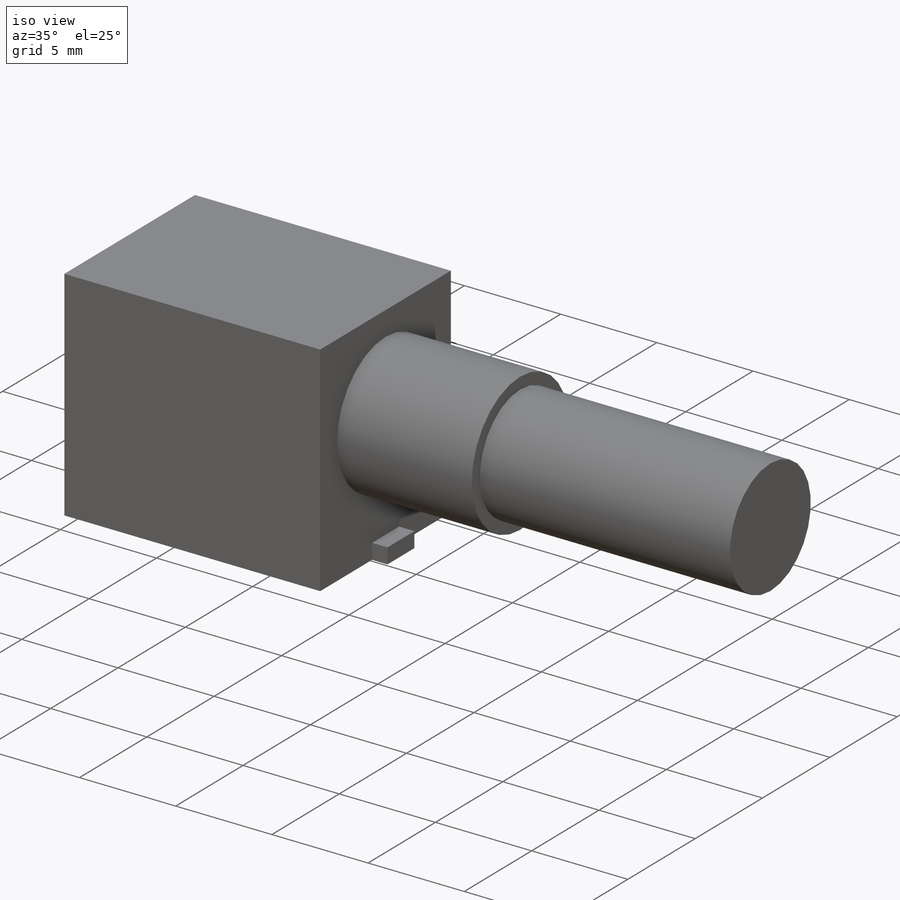
[diagram: iso view]
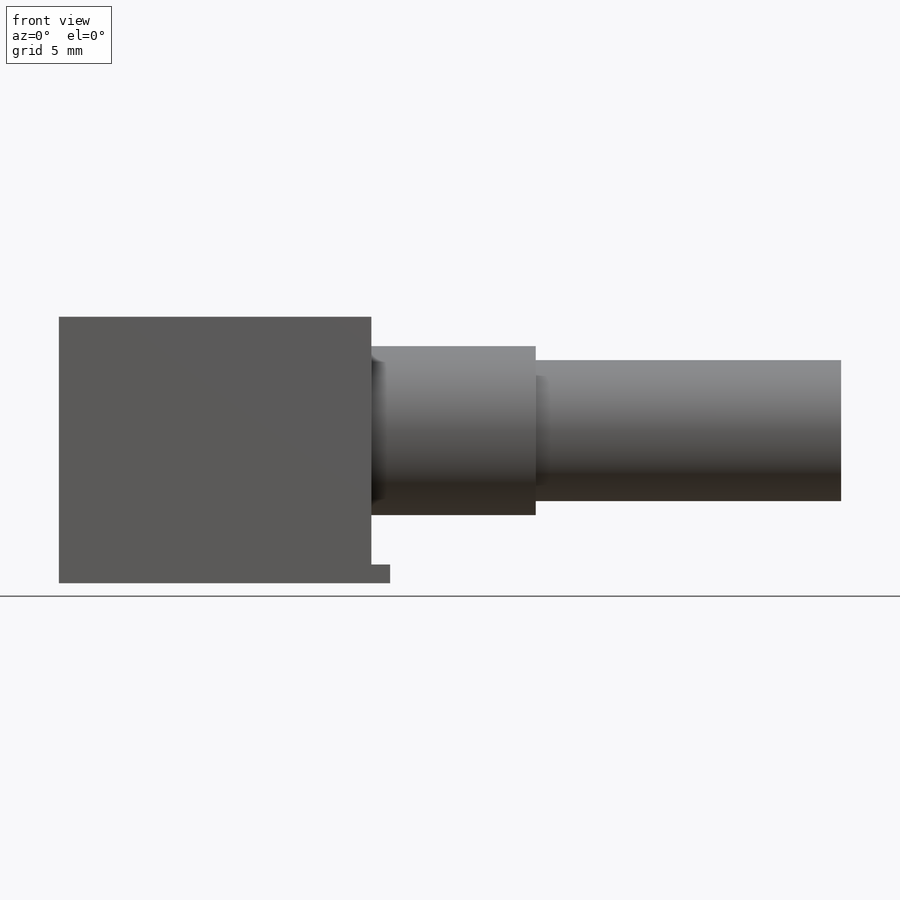
[diagram: front view]
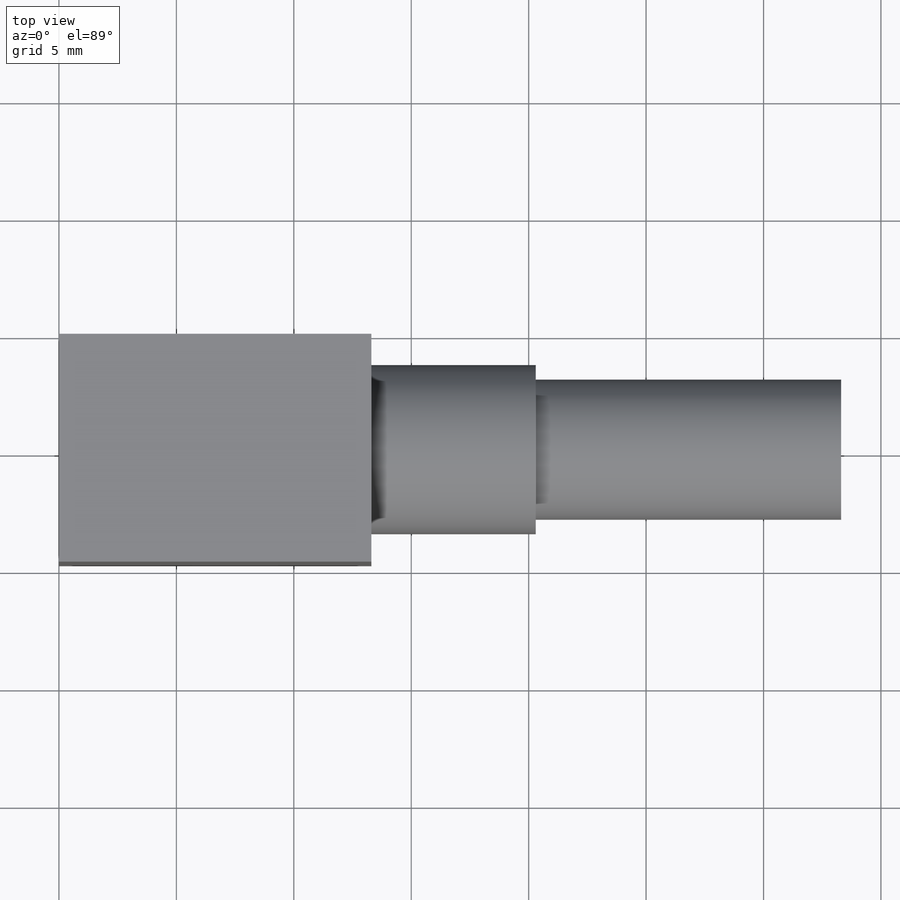
[diagram: top view]
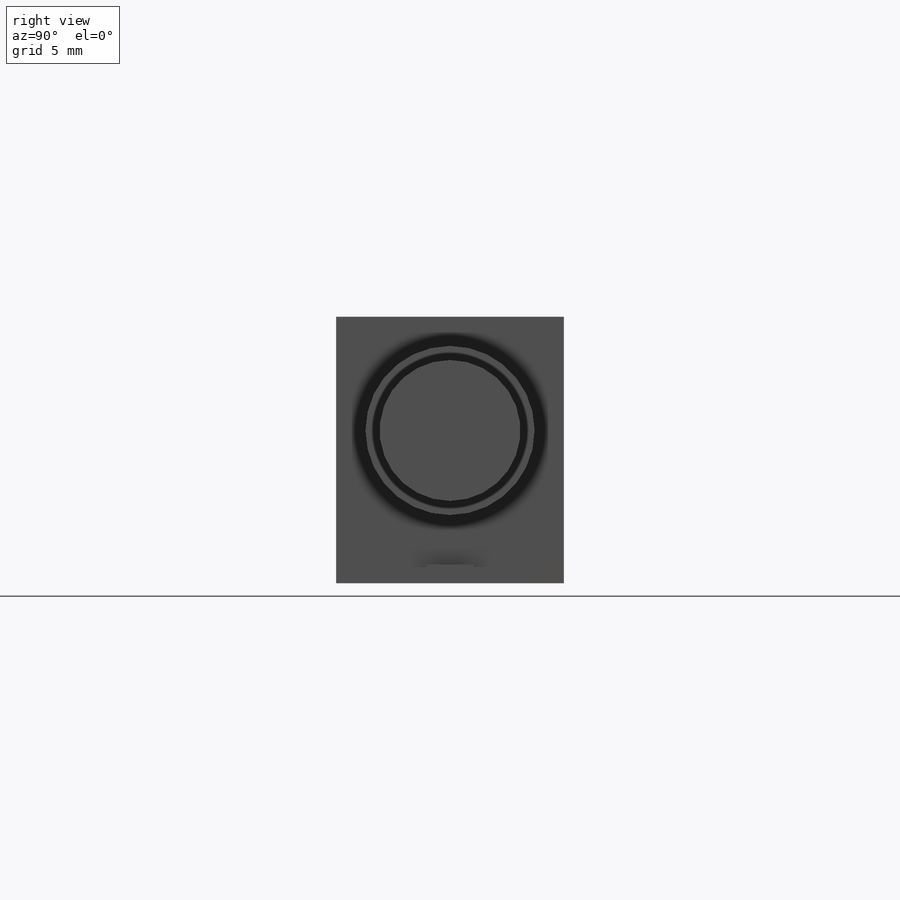
[diagram: right view]
SOLIDWORKS PART (.sldprt)
format: sldprt  version: not decoded by parser v0  size: 158,720 bytes
history: native  units: mm
features: sketch x4, extrude x4, material x1, plane x1 (+11 scaffold rows collapsed)
feature tree (21):
  scaffold x11  (default folders/planes/origin — collapsed)
  material  "Material <not specified>"
  sketch  "Sketch1"  dims[D1=13.3mm D2=11.35mm]
  extrude  "Boss-Extrude1"  Depth=9.7mm
  sketch  "Sketch2"  dims[D2=7.2mm D1=6.5mm]
  extrude  "Boss-Extrude2"  Depth=7mm
  sketch  "Sketch3"  dims[D1=6.0mm]
  extrude  "Boss-Extrude4"  Depth=20mm
  sketch  "Sketch4"  dims[D1=2.0mm D2=0.8mm]
  extrude  "Boss-Extrude5"  Depth=0.8mm
  plane  "Plane1"
decode coverage: 8 of 8 modeling features carry decoded parameters
note: suppression state not decoded; provenance and decode notes live in map.json
